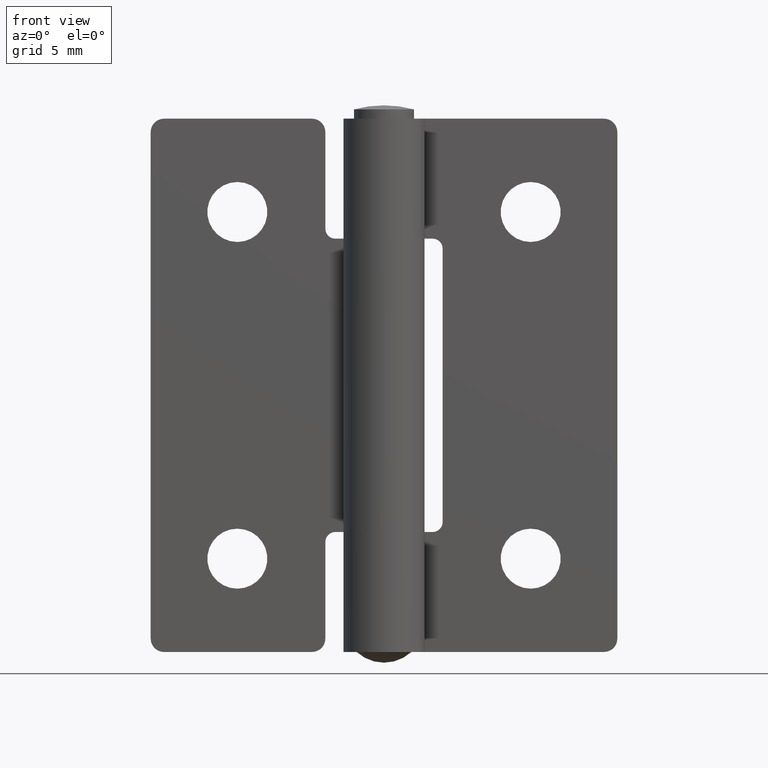
[diagram: clean part render]
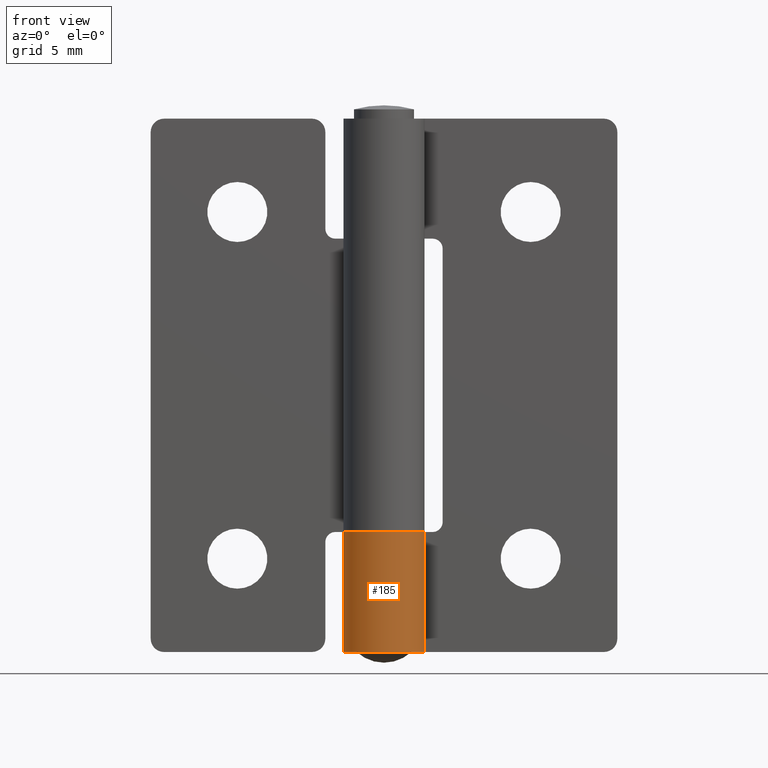
[diagram: same view with one face highlighted and labeled with its STEP entity id]
A machine part, front view. The second image highlights one B-rep face of the part: STEP entity #185.
In plain terms, the highlighted cylindrical surface (partial cylindrical patch) has radius 3.05 mm, axis along (0, 0, 1).
Its self-contained STEP definition (entity closure, byte-faithful):
#185=ADVANCED_FACE('',(#573),#572,.T.);
#572=CYLINDRICAL_SURFACE('',#975,3.05000000000E+00);
#573=FACE_OUTER_BOUND('',#976,.T.);
#972=CARTESIAN_POINT('',(2.41184741027E+01,-4.46314928837E-14,1.00080000231E+03));
#973=DIRECTION('',(0.00000000000E+00,-0.00000000000E+00,1.00000000000E+00));
#974=DIRECTION('',(5.15038074910E-01,8.57167300702E-01,0.00000000000E+00));
#975=AXIS2_PLACEMENT_3D('',#972,#973,#974);
#976=EDGE_LOOP('',(#1255,#1256,#1257,#1258));
#1255=ORIENTED_EDGE('',*,*,#1467,.T.);
#1256=ORIENTED_EDGE('',*,*,#1468,.T.);
#1257=ORIENTED_EDGE('',*,*,#1469,.F.);
#1258=ORIENTED_EDGE('',*,*,#1458,.F.);
#1458=EDGE_CURVE('',#2070,#2077,#2078,.T.);
#1467=EDGE_CURVE('',#2070,#2138,#2139,.T.);
#1468=EDGE_CURVE('',#2138,#2145,#2146,.T.);
#1469=EDGE_CURVE('',#2077,#2145,#2152,.T.);
#2070=VERTEX_POINT('',#2832);
#2077=VERTEX_POINT('',#2837);
#2078=LINE('',#2838,#2839);
#2138=VERTEX_POINT('',#2874);
#2139=CIRCLE('',#2878,3.05000000000E+00);
#2145=VERTEX_POINT('',#2879);
#2146=LINE('',#2880,#2881);
#2152=CIRCLE('',#2886,3.05000000000E+00);
#2832=CARTESIAN_POINT('',(2.67955799669E+01,1.46137065524E+00,9.80000231094E+00));
#2837=CARTESIAN_POINT('',(2.67955799669E+01,1.46137065524E+00,8.00002310939E-01));
#2838=CARTESIAN_POINT('',(2.67955799669E+01,1.46137065524E+00,9.80000231094E+00));
#2839=VECTOR('',#2840,9.00000000000E+00);
#2840=DIRECTION('',(0.00000000000E+00,0.00000000000E+00,-1.00000000000E+00));
#2874=CARTESIAN_POINT('',(2.41184741027E+01,3.05000000000E+00,9.80000231094E+00));
#2875=CARTESIAN_POINT('',(2.41184741027E+01,-4.46314928837E-14,9.80000231094E+00));
#2876=DIRECTION('',(-1.52500317515E-13,1.79366203434E-43,-1.00000000000E+00));
#2877=DIRECTION('',(-7.80991482423E-15,1.00000000000E+00,1.19101449046E-27));
#2878=AXIS2_PLACEMENT_3D('',#2875,#2876,#2877);
#2879=CARTESIAN_POINT('',(2.41184741027E+01,3.05000000000E+00,8.00002310939E-01));
#2880=CARTESIAN_POINT('',(2.41184741027E+01,3.05000000000E+00,9.80000231094E+00));
#2881=VECTOR('',#2882,9.00000000000E+00);
#2882=DIRECTION('',(0.00000000000E+00,0.00000000000E+00,-1.00000000000E+00));
#2883=CARTESIAN_POINT('',(2.41184741027E+01,-4.46314928837E-14,8.00002310939E-01));
#2884=DIRECTION('',(-0.00000000000E+00,0.00000000000E+00,-1.00000000000E+00));
#2885=DIRECTION('',(-7.80991482423E-15,1.00000000000E+00,0.00000000000E+00));
#2886=AXIS2_PLACEMENT_3D('',#2883,#2884,#2885);